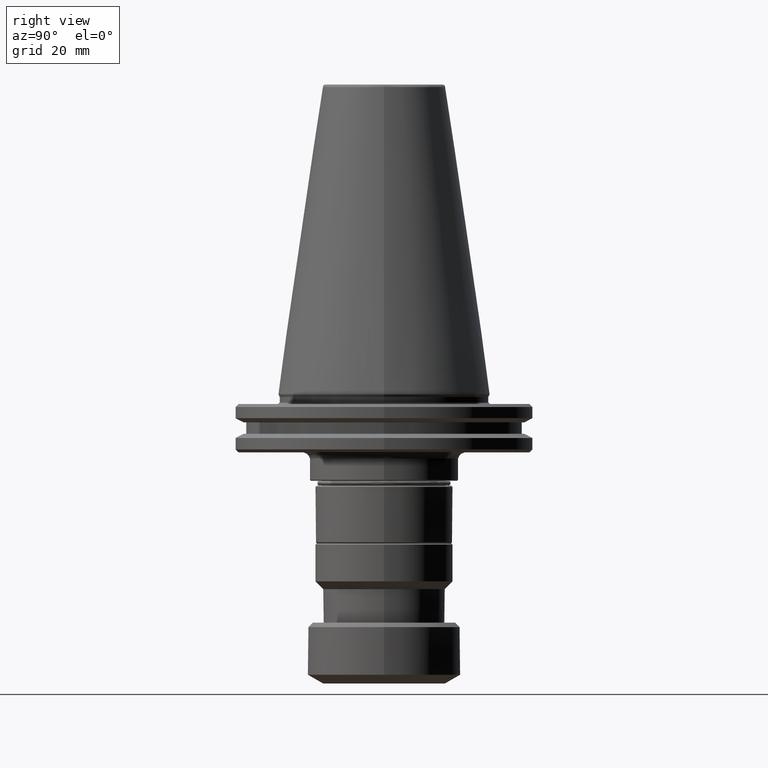
[diagram: clean part render]
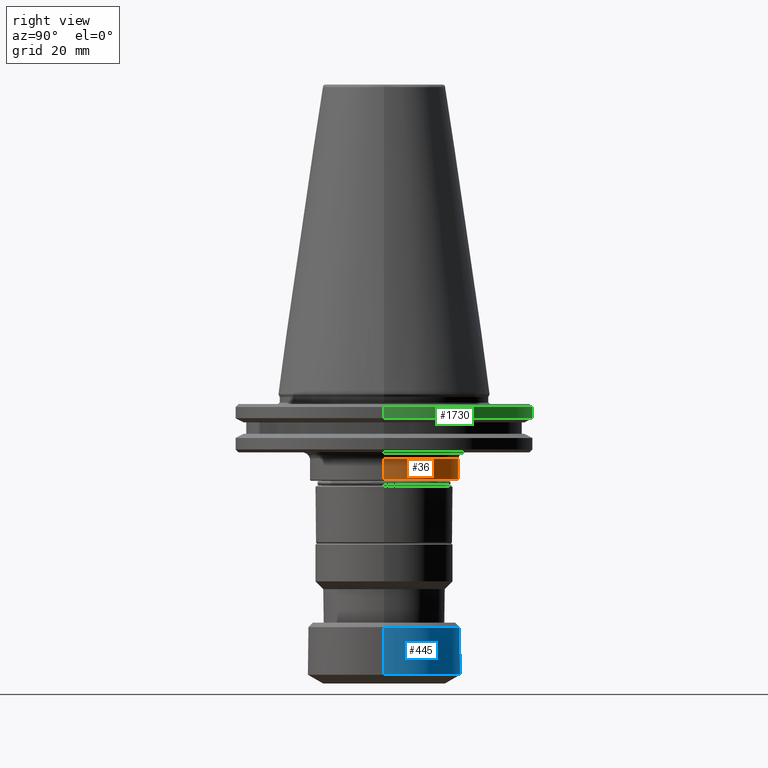
[diagram: same view with three faces highlighted in distinct colors, each labeled with its STEP entity id]
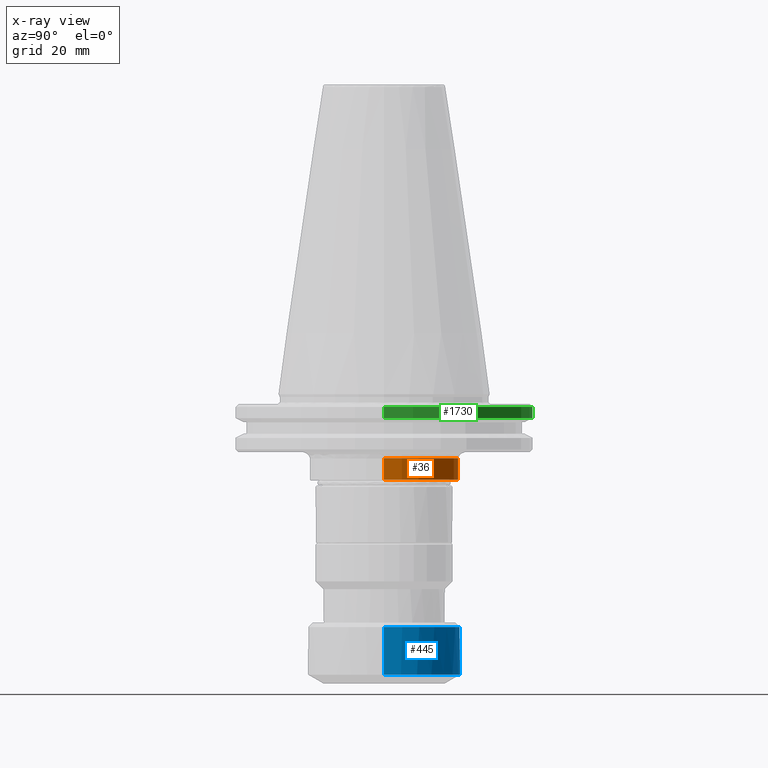
[diagram: x-ray of the same camera — body ghosted, the three highlighted faces saturated]
A machine part, right view with three faces highlighted in distinct colors.
The next image is the same camera in x-ray (body ghosted, the three faces saturated) — at least one of them is partly hidden behind the body in this view.
Their STEP definitions:

[orange] entity #36 — the highlighted cylindrical surface (partial cylindrical patch) has radius 24.5 mm, axis along (0, 0, 1).
#15 = FACE_OUTER_BOUND ( 'NONE', #1919, .T. ) ;
#36 = ADVANCED_FACE ( 'NONE', ( #15 ), #1917, .T. ) ;
#66 = CARTESIAN_POINT ( 'NONE',  ( -24.50000000000000000, 3.000384657911015500E-015, -21.10000000000000900 ) ) ;
#273 = VECTOR ( 'NONE', #1325, 1000.000000000000000 ) ;
#331 = VECTOR ( 'NONE', #1531, 1000.000000000000000 ) ;
#372 = VERTEX_POINT ( 'NONE', #66 ) ;
#414 = CARTESIAN_POINT ( 'NONE',  ( 24.50000000000000000, 0.0000000000000000000, 0.0000000000000000000 ) ) ;
#476 = EDGE_CURVE ( 'NONE', #958, #1596, #1322, .T. ) ;
#493 = EDGE_CURVE ( 'NONE', #1836, #372, #754, .T. ) ;
#514 = DIRECTION ( 'NONE',  ( 0.0000000000000000000, 0.0000000000000000000, -1.000000000000000000 ) ) ;
#754 = LINE ( 'NONE', #1910, #273 ) ;
#805 = AXIS2_PLACEMENT_3D ( 'NONE', #1829, #514, #1281 ) ;
#957 = AXIS2_PLACEMENT_3D ( 'NONE', #1327, #1291, #1214 ) ;
#958 = VERTEX_POINT ( 'NONE', #1212 ) ;
#1212 = CARTESIAN_POINT ( 'NONE',  ( 24.50000000000000000, 0.0000000000000000000, -28.10000000000001600 ) ) ;
#1214 = DIRECTION ( 'NONE',  ( 1.000000000000000000, 0.0000000000000000000, 0.0000000000000000000 ) ) ;
#1281 = DIRECTION ( 'NONE',  ( -1.000000000000000000, 0.0000000000000000000, 0.0000000000000000000 ) ) ;
#1291 = DIRECTION ( 'NONE',  ( 0.0000000000000000000, 0.0000000000000000000, 1.000000000000000000 ) ) ;
#1322 = LINE ( 'NONE', #414, #331 ) ;
#1325 = DIRECTION ( 'NONE',  ( 0.0000000000000000000, 0.0000000000000000000, 1.000000000000000000 ) ) ;
#1327 = CARTESIAN_POINT ( 'NONE',  ( 0.0000000000000000000, 0.0000000000000000000, 0.0000000000000000000 ) ) ;
#1330 = ORIENTED_EDGE ( 'NONE', *, *, #476, .F. ) ;
#1371 = EDGE_CURVE ( 'NONE', #372, #1596, #2120, .T. ) ;
#1531 = DIRECTION ( 'NONE',  ( 0.0000000000000000000, 0.0000000000000000000, 1.000000000000000000 ) ) ;
#1563 = AXIS2_PLACEMENT_3D ( 'NONE', #1930, #1929, #1926 ) ;
#1596 = VERTEX_POINT ( 'NONE', #2079 ) ;
#1701 = EDGE_CURVE ( 'NONE', #958, #1836, #2123, .T. ) ;
#1776 = ORIENTED_EDGE ( 'NONE', *, *, #1701, .T. ) ;
#1829 = CARTESIAN_POINT ( 'NONE',  ( 0.0000000000000000000, 0.0000000000000000000, -21.10000000000000900 ) ) ;
#1836 = VERTEX_POINT ( 'NONE', #1848 ) ;
#1848 = CARTESIAN_POINT ( 'NONE',  ( -24.50000000000000000, 3.000384657911015100E-015, -28.10000000000001600 ) ) ;
#1910 = CARTESIAN_POINT ( 'NONE',  ( -24.50000000000000000, 3.000384657911015500E-015, 0.0000000000000000000 ) ) ;
#1917 = CYLINDRICAL_SURFACE ( 'NONE', #957, 24.50000000000000000 ) ;
#1919 = EDGE_LOOP ( 'NONE', ( #1776, #2077, #2132, #1330 ) ) ;
#1926 = DIRECTION ( 'NONE',  ( 1.000000000000000000, 0.0000000000000000000, 0.0000000000000000000 ) ) ;
#1929 = DIRECTION ( 'NONE',  ( 0.0000000000000000000, 0.0000000000000000000, 1.000000000000000000 ) ) ;
#1930 = CARTESIAN_POINT ( 'NONE',  ( 0.0000000000000000000, 0.0000000000000000000, -28.10000000000001600 ) ) ;
#2077 = ORIENTED_EDGE ( 'NONE', *, *, #493, .T. ) ;
#2079 = CARTESIAN_POINT ( 'NONE',  ( 24.50000000000000000, 0.0000000000000000000, -21.10000000000000900 ) ) ;
#2120 = CIRCLE ( 'NONE', #805, 24.50000000000000000 ) ;
#2123 = CIRCLE ( 'NONE', #1563, 24.50000000000000000 ) ;
#2132 = ORIENTED_EDGE ( 'NONE', *, *, #1371, .T. ) ;

[blue] entity #445 — the highlighted cylindrical surface (partial cylindrical patch) has radius 25 mm, axis along (0, 0, 1).
#48 = EDGE_CURVE ( 'NONE', #2129, #2380, #529, .T. ) ;
#112 = CARTESIAN_POINT ( 'NONE',  ( -25.00000000000000000, 3.061616997868383000E-015, 0.0000000000000000000 ) ) ;
#137 = CIRCLE ( 'NONE', #1870, 25.00000000000000000 ) ;
#179 = AXIS2_PLACEMENT_3D ( 'NONE', #558, #921, #1878 ) ;
#228 = AXIS2_PLACEMENT_3D ( 'NONE', #1159, #1150, #1136 ) ;
#262 = CARTESIAN_POINT ( 'NONE',  ( -25.00000000000000000, 3.061616997868383000E-015, -92.11324865405183000 ) ) ;
#395 = EDGE_LOOP ( 'NONE', ( #2184, #654, #1506, #792, #1650 ) ) ;
#445 = ADVANCED_FACE ( 'NONE', ( #1497 ), #815, .T. ) ;
#481 = VECTOR ( 'NONE', #1169, 1000.000000000000000 ) ;
#529 = LINE ( 'NONE', #1176, #481 ) ;
#558 = CARTESIAN_POINT ( 'NONE',  ( 0.0000000000000000000, 0.0000000000000000000, 0.0000000000000000000 ) ) ;
#561 = EDGE_CURVE ( 'NONE', #2380, #2043, #1585, .T. ) ;
#654 = ORIENTED_EDGE ( 'NONE', *, *, #1936, .T. ) ;
#694 = CIRCLE ( 'NONE', #2416, 25.00000000000000000 ) ;
#792 = ORIENTED_EDGE ( 'NONE', *, *, #48, .F. ) ;
#815 = CYLINDRICAL_SURFACE ( 'NONE', #179, 25.00000000000000000 ) ;
#921 = DIRECTION ( 'NONE',  ( 0.0000000000000000000, 0.0000000000000000000, 1.000000000000000000 ) ) ;
#972 = CARTESIAN_POINT ( 'NONE',  ( -25.00000000000000000, 3.061616997868383000E-015, -76.50000000000000000 ) ) ;
#1083 = VERTEX_POINT ( 'NONE', #262 ) ;
#1136 = DIRECTION ( 'NONE',  ( -1.000000000000000000, 0.0000000000000000000, 0.0000000000000000000 ) ) ;
#1150 = DIRECTION ( 'NONE',  ( -0.0000000000000000000, -0.0000000000000000000, 1.000000000000000000 ) ) ;
#1159 = CARTESIAN_POINT ( 'NONE',  ( 0.0000000000000000000, 0.0000000000000000000, -76.50000000000000000 ) ) ;
#1169 = DIRECTION ( 'NONE',  ( 0.0000000000000000000, 0.0000000000000000000, 1.000000000000000000 ) ) ;
#1176 = CARTESIAN_POINT ( 'NONE',  ( 25.00000000000000000, 0.0000000000000000000, 0.0000000000000000000 ) ) ;
#1184 = VERTEX_POINT ( 'NONE', #1594 ) ;
#1426 = DIRECTION ( 'NONE',  ( 0.0000000000000000000, 0.0000000000000000000, 1.000000000000000000 ) ) ;
#1497 = FACE_OUTER_BOUND ( 'NONE', #395, .T. ) ;
#1506 = ORIENTED_EDGE ( 'NONE', *, *, #561, .F. ) ;
#1528 = CARTESIAN_POINT ( 'NONE',  ( 25.00000000000000000, 0.0000000000000000000, -76.50000000000000000 ) ) ;
#1585 = CIRCLE ( 'NONE', #228, 25.00000000000000000 ) ;
#1594 = CARTESIAN_POINT ( 'NONE',  ( 3.061616997868380300E-015, 24.99999999999997900, -92.11324865405183000 ) ) ;
#1602 = DIRECTION ( 'NONE',  ( 1.000000000000000000, 0.0000000000000000000, 0.0000000000000000000 ) ) ;
#1604 = DIRECTION ( 'NONE',  ( 0.0000000000000000000, 0.0000000000000000000, 1.000000000000000000 ) ) ;
#1610 = CARTESIAN_POINT ( 'NONE',  ( 0.0000000000000000000, 0.0000000000000000000, -92.11324865405183000 ) ) ;
#1650 = ORIENTED_EDGE ( 'NONE', *, *, #1734, .T. ) ;
#1680 = DIRECTION ( 'NONE',  ( 1.000000000000000000, 0.0000000000000000000, 0.0000000000000000000 ) ) ;
#1691 = DIRECTION ( 'NONE',  ( 0.0000000000000000000, 0.0000000000000000000, 1.000000000000000000 ) ) ;
#1697 = CARTESIAN_POINT ( 'NONE',  ( 0.0000000000000000000, 0.0000000000000000000, -92.11324865405183000 ) ) ;
#1734 = EDGE_CURVE ( 'NONE', #2129, #1184, #694, .T. ) ;
#1756 = EDGE_CURVE ( 'NONE', #1184, #1083, #137, .T. ) ;
#1790 = LINE ( 'NONE', #112, #2100 ) ;
#1870 = AXIS2_PLACEMENT_3D ( 'NONE', #1610, #1604, #1602 ) ;
#1878 = DIRECTION ( 'NONE',  ( 1.000000000000000000, 0.0000000000000000000, 0.0000000000000000000 ) ) ;
#1936 = EDGE_CURVE ( 'NONE', #1083, #2043, #1790, .T. ) ;
#2043 = VERTEX_POINT ( 'NONE', #972 ) ;
#2100 = VECTOR ( 'NONE', #1426, 1000.000000000000000 ) ;
#2129 = VERTEX_POINT ( 'NONE', #2277 ) ;
#2184 = ORIENTED_EDGE ( 'NONE', *, *, #1756, .T. ) ;
#2277 = CARTESIAN_POINT ( 'NONE',  ( 25.00000000000000000, 0.0000000000000000000, -92.11324865405183000 ) ) ;
#2380 = VERTEX_POINT ( 'NONE', #1528 ) ;
#2416 = AXIS2_PLACEMENT_3D ( 'NONE', #1697, #1691, #1680 ) ;

[green] entity #1730 — the highlighted cylindrical surface (partial cylindrical patch) has radius 48.75 mm, axis along (0, 0, 1).
#78 = ORIENTED_EDGE ( 'NONE', *, *, #2328, .T. ) ;
#217 = DIRECTION ( 'NONE',  ( 1.000000000000000000, 0.0000000000000000000, 0.0000000000000000000 ) ) ;
#271 = VECTOR ( 'NONE', #1071, 1000.000000000000000 ) ;
#329 = AXIS2_PLACEMENT_3D ( 'NONE', #413, #590, #217 ) ;
#413 = CARTESIAN_POINT ( 'NONE',  ( 0.0000000000000000000, 0.0000000000000000000, -4.199999999999870500 ) ) ;
#421 = LINE ( 'NONE', #1351, #784 ) ;
#426 = EDGE_LOOP ( 'NONE', ( #78, #1800, #876, #2108 ) ) ;
#531 = CARTESIAN_POINT ( 'NONE',  ( -48.75000000000000000, 5.970153145843347100E-015, -7.852404735808352000 ) ) ;
#538 = VERTEX_POINT ( 'NONE', #594 ) ;
#581 = DIRECTION ( 'NONE',  ( 0.0000000000000000000, 0.0000000000000000000, 1.000000000000000000 ) ) ;
#590 = DIRECTION ( 'NONE',  ( -0.0000000000000000000, -0.0000000000000000000, 1.000000000000000000 ) ) ;
#594 = CARTESIAN_POINT ( 'NONE',  ( 48.75000000000000000, 0.0000000000000000000, -7.852404735808352000 ) ) ;
#617 = CARTESIAN_POINT ( 'NONE',  ( 48.75000000000084600, 0.0000000000000000000, -4.199999999999870500 ) ) ;
#784 = VECTOR ( 'NONE', #1070, 1000.000000000000000 ) ;
#876 = ORIENTED_EDGE ( 'NONE', *, *, #2323, .F. ) ;
#1070 = DIRECTION ( 'NONE',  ( 0.0000000000000000000, 0.0000000000000000000, 1.000000000000000000 ) ) ;
#1071 = DIRECTION ( 'NONE',  ( 0.0000000000000000000, 0.0000000000000000000, 1.000000000000000000 ) ) ;
#1077 = CYLINDRICAL_SURFACE ( 'NONE', #2055, 48.75000000000000000 ) ;
#1088 = AXIS2_PLACEMENT_3D ( 'NONE', #1901, #581, #1714 ) ;
#1351 = CARTESIAN_POINT ( 'NONE',  ( 48.75000000000000000, 0.0000000000000000000, 113.5216080541959500 ) ) ;
#1462 = CIRCLE ( 'NONE', #1088, 48.75000000000000000 ) ;
#1586 = FACE_OUTER_BOUND ( 'NONE', #426, .T. ) ;
#1641 = LINE ( 'NONE', #2361, #271 ) ;
#1714 = DIRECTION ( 'NONE',  ( 1.000000000000000000, 0.0000000000000000000, 0.0000000000000000000 ) ) ;
#1730 = ADVANCED_FACE ( 'NONE', ( #1586 ), #1077, .T. ) ;
#1746 = CARTESIAN_POINT ( 'NONE',  ( 0.0000000000000000000, 0.0000000000000000000, 113.5216080541959500 ) ) ;
#1748 = CARTESIAN_POINT ( 'NONE',  ( -48.75000000000084600, 5.970153145843449700E-015, -4.199999999999870500 ) ) ;
#1800 = ORIENTED_EDGE ( 'NONE', *, *, #2267, .T. ) ;
#1900 = DIRECTION ( 'NONE',  ( 0.0000000000000000000, 0.0000000000000000000, 1.000000000000000000 ) ) ;
#1901 = CARTESIAN_POINT ( 'NONE',  ( 0.0000000000000000000, 0.0000000000000000000, -7.852404735808352000 ) ) ;
#1904 = EDGE_CURVE ( 'NONE', #538, #2076, #421, .T. ) ;
#1954 = DIRECTION ( 'NONE',  ( 1.000000000000000000, 0.0000000000000000000, 0.0000000000000000000 ) ) ;
#2055 = AXIS2_PLACEMENT_3D ( 'NONE', #1746, #1900, #1954 ) ;
#2065 = CIRCLE ( 'NONE', #329, 48.75000000000084600 ) ;
#2076 = VERTEX_POINT ( 'NONE', #617 ) ;
#2108 = ORIENTED_EDGE ( 'NONE', *, *, #1904, .F. ) ;
#2155 = VERTEX_POINT ( 'NONE', #1748 ) ;
#2216 = VERTEX_POINT ( 'NONE', #531 ) ;
#2267 = EDGE_CURVE ( 'NONE', #2216, #2155, #1641, .T. ) ;
#2323 = EDGE_CURVE ( 'NONE', #2076, #2155, #2065, .T. ) ;
#2328 = EDGE_CURVE ( 'NONE', #538, #2216, #1462, .T. ) ;
#2361 = CARTESIAN_POINT ( 'NONE',  ( -48.75000000000000000, 5.970153145843347100E-015, 113.5216080541959500 ) ) ;